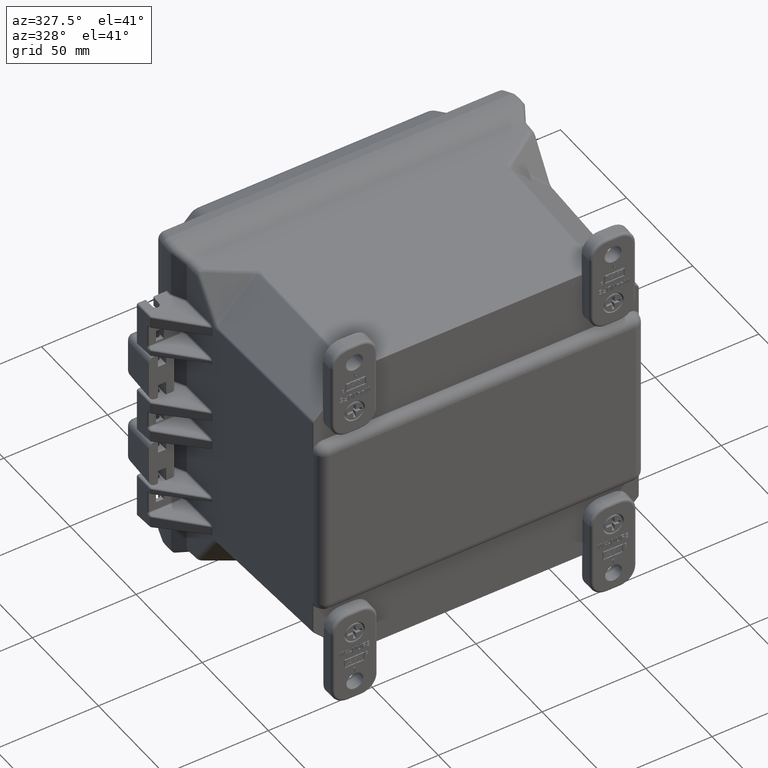
[diagram: clean part render]
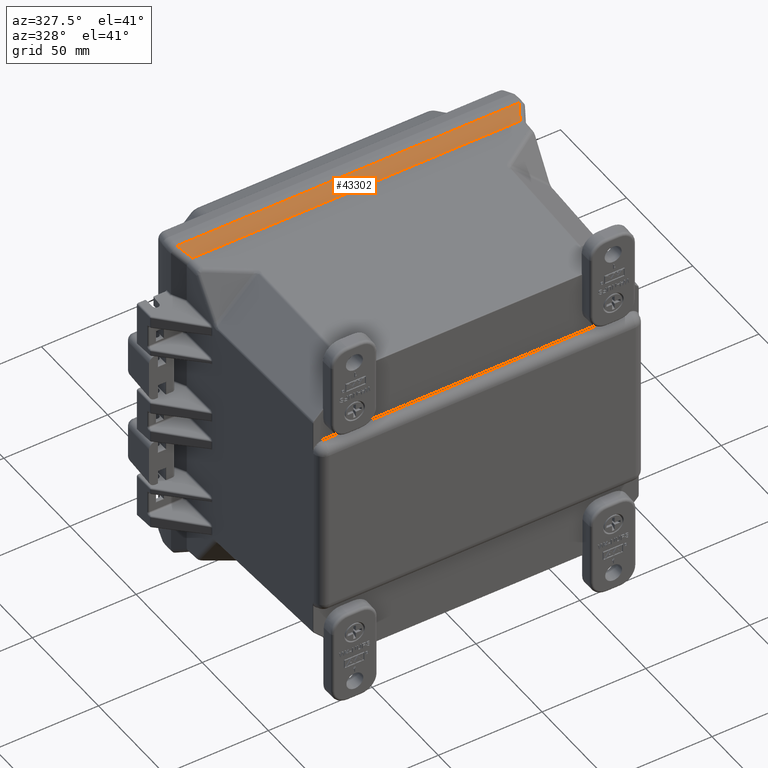
[diagram: same view with one face highlighted and labeled with its STEP entity id]
A machine part, auxiliary view. The second image highlights one B-rep face of the part: STEP entity #43302.
In plain terms, the highlighted planar face has unit normal (0, -0.4867, 0.8736).
Its self-contained STEP definition (entity closure, byte-faithful):
#496 = EDGE_CURVE ( 'NONE', #20499, #6343, #60747, .T. ) ;
#1162 = CARTESIAN_POINT ( 'NONE',  ( 3.230711050436143200, -0.1250000000000000000, 3.245634903813531500 ) ) ;
#3486 = CARTESIAN_POINT ( 'NONE',  ( 3.106205487526272300, -0.3766930333416742500, 3.105400479529249100 ) ) ;
#6223 = CARTESIAN_POINT ( 'NONE',  ( 3.240608599155478900, -0.1255650107226628500, 3.245320099894030400 ) ) ;
#6343 = VERTEX_POINT ( 'NONE', #1162 ) ;
#7626 = CARTESIAN_POINT ( 'NONE',  ( 3.267353226552114800, -0.08746473965720667800, 3.266548218555091100 ) ) ;
#11707 = ORIENTED_EDGE ( 'NONE', *, *, #23044, .F. ) ;
#13202 = EDGE_CURVE ( 'NONE', #64557, #78500, #54672, .T. ) ;
#13550 = CARTESIAN_POINT ( 'NONE',  ( -3.106205487526270100, -0.3766930333416742000, 3.105400479529249100 ) ) ;
#16082 = EDGE_CURVE ( 'NONE', #58976, #78500, #91346, .T. ) ;
#16120 = CARTESIAN_POINT ( 'NONE',  ( 3.235674259355790100, -0.1249999999999994600, 3.245634903813531500 ) ) ;
#16581 = ORIENTED_EDGE ( 'NONE', *, *, #16082, .T. ) ;
#16899 = CARTESIAN_POINT ( 'NONE',  ( -3.240608599155477200, -0.1255650107226628000, 3.245320099894029900 ) ) ;
#19531 = ORIENTED_EDGE ( 'NONE', *, *, #78712, .F. ) ;
#19724 = CARTESIAN_POINT ( 'NONE',  ( -3.091419924235290700, -0.3749999999999999400, 3.106343777612678500 ) ) ;
#20499 = VERTEX_POINT ( 'NONE', #57781 ) ;
#21001 =( BOUNDED_CURVE ( )  B_SPLINE_CURVE ( 3, ( #104033, #95243, #16899, #112784 ),
 .UNSPECIFIED., .F., .F. ) 
 B_SPLINE_CURVE_WITH_KNOTS ( ( 4, 4 ),
 ( 6.265319891398004200, 6.384294207554048300 ),
 .UNSPECIFIED. ) 
 CURVE ( )  GEOMETRIC_REPRESENTATION_ITEM ( )  RATIONAL_B_SPLINE_CURVE ( ( 1.000000000000000000, 0.9988207738156053000, 0.9988207738156053000, 1.000000000000000000 ) ) 
 REPRESENTATION_ITEM ( '' )  );
#21971 = DIRECTION ( 'NONE',  ( -1.000000000000000000, -0.0000000000000000000, -0.0000000000000000000 ) ) ;
#22531 = LINE ( 'NONE', #32100, #86456 ) ;
#23044 = EDGE_CURVE ( 'NONE', #103895, #64557, #84005, .T. ) ;
#23376 = DIRECTION ( 'NONE',  ( 0.4376330136515798600, -0.7854646336560750000, -0.4376330136515798600 ) ) ;
#23522 = EDGE_CURVE ( 'NONE', #111574, #47079, #21001, .T. ) ;
#25706 = ORIENTED_EDGE ( 'NONE', *, *, #23522, .T. ) ;
#28673 = CARTESIAN_POINT ( 'NONE',  ( 3.091419924235292400, -0.3749999999999999400, 3.106343777612678500 ) ) ;
#29465 = CARTESIAN_POINT ( 'NONE',  ( -3.359999999999998500, -0.1250000000000000000, 3.245634903813531500 ) ) ;
#32100 = CARTESIAN_POINT ( 'NONE',  ( -1.981993017005102300, -2.394431889333286100, 1.981188009008081100 ) ) ;
#32419 = CARTESIAN_POINT ( 'NONE',  ( 3.355634903813532200, -0.1250000000000000000, 3.245634903813531500 ) ) ;
#33482 = DIRECTION ( 'NONE',  ( 0.4376330136515798600, 0.7854646336560750000, 0.4376330136515798600 ) ) ;
#33596 = CARTESIAN_POINT ( 'NONE',  ( 3.230711050436143200, -0.1250000000000000000, 3.245634903813531500 ) ) ;
#33814 = FACE_OUTER_BOUND ( 'NONE', #43596, .T. ) ;
#34132 = CARTESIAN_POINT ( 'NONE',  ( -3.101317472954624200, -0.3755650107226634100, 3.106028973693177400 ) ) ;
#34946 = CARTESIAN_POINT ( 'NONE',  ( 2.388343777612680400, -0.3749999999999998900, 3.106343777612679400 ) ) ;
#35082 = VECTOR ( 'NONE', #21971, 39.37007874015748100 ) ;
#38243 = DIRECTION ( 'NONE',  ( 1.000000000000000000, 0.0000000000000000000, 0.0000000000000000000 ) ) ;
#38742 = DIRECTION ( 'NONE',  ( -1.000000000000000000, 0.0000000000000000000, 0.0000000000000000000 ) ) ;
#41199 = DIRECTION ( 'NONE',  ( 0.0000000000000000000, -0.4867165891708091200, 0.8735599360238162100 ) ) ;
#41230 = CARTESIAN_POINT ( 'NONE',  ( 3.355634903813532200, -0.3749999999999999400, 3.106343777612678500 ) ) ;
#42279 = ORIENTED_EDGE ( 'NONE', *, *, #496, .T. ) ;
#43302 = ADVANCED_FACE ( 'NONE', ( #33814 ), #84511, .T. ) ;
#43596 = EDGE_LOOP ( 'NONE', ( #84905, #65325, #42279, #103452, #25706, #55672, #16581, #64720, #11707, #19531 ) ) ;
#46490 = VECTOR ( 'NONE', #49974, 39.37007874015748100 ) ;
#47079 = VERTEX_POINT ( 'NONE', #99156 ) ;
#48544 = EDGE_CURVE ( 'NONE', #77739, #111431, #86891, .T. ) ;
#49974 = DIRECTION ( 'NONE',  ( -1.000000000000000000, -0.0000000000000000000, -0.0000000000000000000 ) ) ;
#54672 = LINE ( 'NONE', #41230, #46490 ) ;
#55672 = ORIENTED_EDGE ( 'NONE', *, *, #104556, .T. ) ;
#57781 = CARTESIAN_POINT ( 'NONE',  ( 3.245496613727125300, -0.1266930333416741200, 3.244691605730102100 ) ) ;
#58188 = VECTOR ( 'NONE', #38742, 39.37007874015748100 ) ;
#58976 = VERTEX_POINT ( 'NONE', #13550 ) ;
#60747 =( BOUNDED_CURVE ( )  B_SPLINE_CURVE ( 3, ( #85691, #6223, #16120, #33596 ),
 .UNSPECIFIED., .F., .F. ) 
 B_SPLINE_CURVE_WITH_KNOTS ( ( 4, 4 ),
 ( 6.182076406805127700, 6.301050722961186100 ),
 .UNSPECIFIED. ) 
 CURVE ( )  GEOMETRIC_REPRESENTATION_ITEM ( )  RATIONAL_B_SPLINE_CURVE ( ( 1.000000000000000000, 0.9988207738156049700, 0.9988207738156049700, 1.000000000000000000 ) ) 
 REPRESENTATION_ITEM ( '' )  );
#63234 = LINE ( 'NONE', #29465, #65981 ) ;
#64007 = CARTESIAN_POINT ( 'NONE',  ( 3.091419924235292400, -0.3749999999999999400, 3.106343777612678500 ) ) ;
#64557 = VERTEX_POINT ( 'NONE', #76949 ) ;
#64720 = ORIENTED_EDGE ( 'NONE', *, *, #13202, .F. ) ;
#65325 = ORIENTED_EDGE ( 'NONE', *, *, #71461, .T. ) ;
#65981 = VECTOR ( 'NONE', #38243, 39.37007874015748100 ) ;
#71461 = EDGE_CURVE ( 'NONE', #111431, #20499, #76957, .T. ) ;
#71908 = CARTESIAN_POINT ( 'NONE',  ( -3.230711050436143200, -0.1250000000000000000, 3.245634903813531500 ) ) ;
#72792 = AXIS2_PLACEMENT_3D ( 'NONE', #32419, #41199, #102079 ) ;
#76949 = CARTESIAN_POINT ( 'NONE',  ( -2.388343777612684800, -0.3750000000000099900, 3.106343777612679400 ) ) ;
#76957 = LINE ( 'NONE', #7626, #85135 ) ;
#77739 = VERTEX_POINT ( 'NONE', #28673 ) ;
#78500 = VERTEX_POINT ( 'NONE', #19724 ) ;
#78712 = EDGE_CURVE ( 'NONE', #77739, #103895, #81312, .T. ) ;
#81312 = LINE ( 'NONE', #91539, #35082 ) ;
#84005 = LINE ( 'NONE', #107266, #58188 ) ;
#84511 = PLANE ( 'NONE',  #72792 ) ;
#84905 = ORIENTED_EDGE ( 'NONE', *, *, #48544, .T. ) ;
#85135 = VECTOR ( 'NONE', #33482, 39.37007874015748900 ) ;
#85691 = CARTESIAN_POINT ( 'NONE',  ( 3.245496613727125300, -0.1266930333416741200, 3.244691605730102100 ) ) ;
#86404 = CARTESIAN_POINT ( 'NONE',  ( 3.106205487526272300, -0.3766930333416742500, 3.105400479529249100 ) ) ;
#86456 = VECTOR ( 'NONE', #23376, 39.37007874015748900 ) ;
#86891 =( BOUNDED_CURVE ( )  B_SPLINE_CURVE ( 3, ( #64007, #107818, #90229, #3486 ),
 .UNSPECIFIED., .F., .F. ) 
 B_SPLINE_CURVE_WITH_KNOTS ( ( 4, 4 ),
 ( 6.265319891398004200, 6.384294207554044800 ),
 .UNSPECIFIED. ) 
 CURVE ( )  GEOMETRIC_REPRESENTATION_ITEM ( )  RATIONAL_B_SPLINE_CURVE ( ( 1.000000000000000000, 0.9988207738156054100, 0.9988207738156054100, 1.000000000000000000 ) ) 
 REPRESENTATION_ITEM ( '' )  );
#88845 = CARTESIAN_POINT ( 'NONE',  ( -3.096383133154936700, -0.3749999999999999400, 3.106343777612678500 ) ) ;
#90229 = CARTESIAN_POINT ( 'NONE',  ( 3.101317472954626500, -0.3755650107226633500, 3.106028973693177400 ) ) ;
#91346 =( BOUNDED_CURVE ( )  B_SPLINE_CURVE ( 3, ( #97617, #34132, #88845, #106425 ),
 .UNSPECIFIED., .F., .F. ) 
 B_SPLINE_CURVE_WITH_KNOTS ( ( 4, 4 ),
 ( 6.182076406805127700, 6.301050722961163900 ),
 .UNSPECIFIED. ) 
 CURVE ( )  GEOMETRIC_REPRESENTATION_ITEM ( )  RATIONAL_B_SPLINE_CURVE ( ( 1.000000000000000000, 0.9988207738156056300, 0.9988207738156056300, 1.000000000000000000 ) ) 
 REPRESENTATION_ITEM ( '' )  );
#91539 = CARTESIAN_POINT ( 'NONE',  ( 3.355634903813532200, -0.3749999999999999400, 3.106343777612678500 ) ) ;
#95243 = CARTESIAN_POINT ( 'NONE',  ( -3.235674259355789200, -0.1249999999999993300, 3.245634903813531000 ) ) ;
#97617 = CARTESIAN_POINT ( 'NONE',  ( -3.106205487526270100, -0.3766930333416742000, 3.105400479529249100 ) ) ;
#99156 = CARTESIAN_POINT ( 'NONE',  ( -3.245496613727123900, -0.1266930333416728900, 3.244691605730102500 ) ) ;
#102079 = DIRECTION ( 'NONE',  ( 0.0000000000000000000, -0.8735599360238162100, -0.4867165891708091200 ) ) ;
#103452 = ORIENTED_EDGE ( 'NONE', *, *, #105316, .F. ) ;
#103895 = VERTEX_POINT ( 'NONE', #34946 ) ;
#104033 = CARTESIAN_POINT ( 'NONE',  ( -3.230711050436143200, -0.1250000000000000000, 3.245634903813531500 ) ) ;
#104556 = EDGE_CURVE ( 'NONE', #47079, #58976, #22531, .T. ) ;
#105316 = EDGE_CURVE ( 'NONE', #111574, #6343, #63234, .T. ) ;
#106425 = CARTESIAN_POINT ( 'NONE',  ( -3.091419924235290700, -0.3749999999999999400, 3.106343777612678500 ) ) ;
#107266 = CARTESIAN_POINT ( 'NONE',  ( 2.388343777612679000, -0.3749999999999999400, 3.106343777612678500 ) ) ;
#107818 = CARTESIAN_POINT ( 'NONE',  ( 3.096383133154938500, -0.3749999999999999400, 3.106343777612678500 ) ) ;
#111431 = VERTEX_POINT ( 'NONE', #86404 ) ;
#111574 = VERTEX_POINT ( 'NONE', #71908 ) ;
#112784 = CARTESIAN_POINT ( 'NONE',  ( -3.245496613727123900, -0.1266930333416728900, 3.244691605730102500 ) ) ;